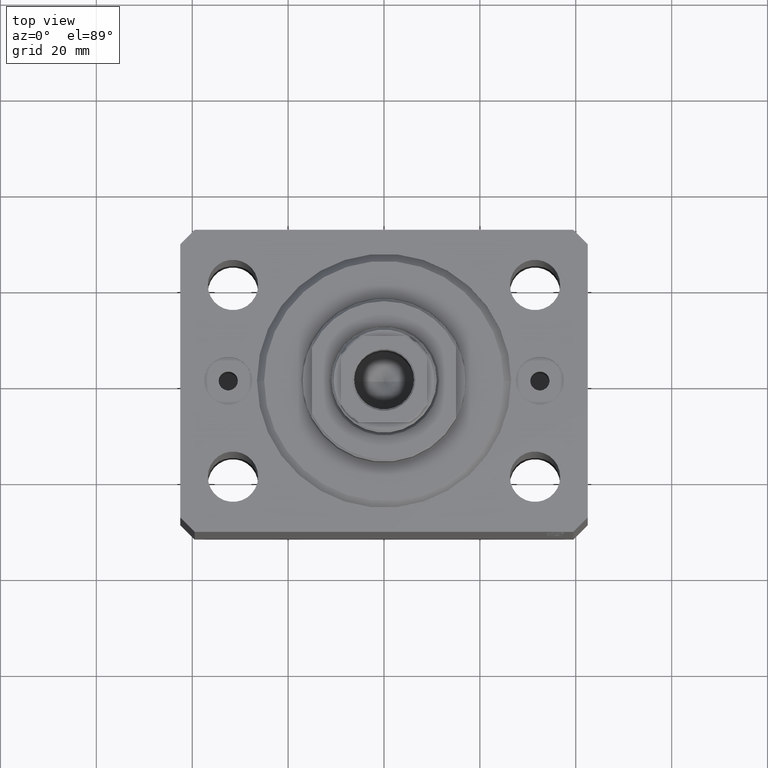
[diagram: clean part render]
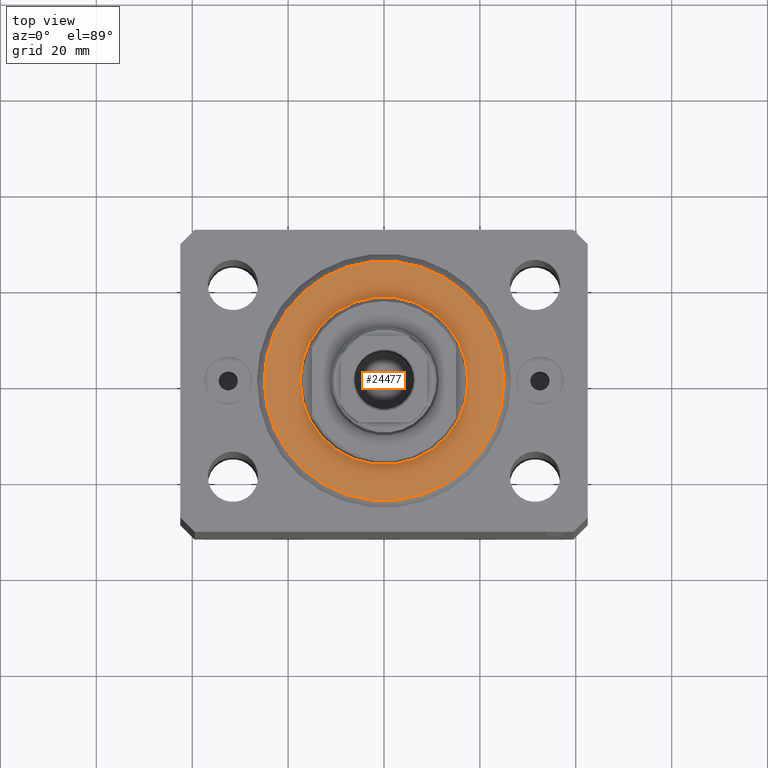
[diagram: same view with one face highlighted and labeled with its STEP entity id]
A machine part, top view. The second image highlights one B-rep face of the part: STEP entity #24477.
In plain terms, the highlighted planar face has unit normal (0, 0, -1).
Its self-contained STEP definition (entity closure, byte-faithful):
#227 = CIRCLE ( 'NONE', #34622, 24.99999999999995026 ) ;
#862 = ORIENTED_EDGE ( 'NONE', *, *, #3873, .T. ) ;
#2472 = CIRCLE ( 'NONE', #19665, 24.99999999999995026 ) ;
#3873 = EDGE_CURVE ( 'NONE', #36420, #24361, #14824, .T. ) ;
#4347 = CARTESIAN_POINT ( 'NONE',  ( 24.99999999999995026, 0.000000000000000000, 0.000000000000000000 ) ) ;
#7124 = CARTESIAN_POINT ( 'NONE',  ( -24.99999999999995026, 3.153465507804431248E-15, 0.000000000000000000 ) ) ;
#10063 = VERTEX_POINT ( 'NONE', #7124 ) ;
#10551 = EDGE_LOOP ( 'NONE', ( #39640, #33841 ) ) ;
#13218 = DIRECTION ( 'NONE',  ( 1.000000000000000000, 0.000000000000000000, -0.000000000000000000 ) ) ;
#13913 = DIRECTION ( 'NONE',  ( 1.000000000000000000, 0.000000000000000000, 0.000000000000000000 ) ) ;
#14144 = EDGE_CURVE ( 'NONE', #10063, #32699, #2472, .T. ) ;
#14824 = CIRCLE ( 'NONE', #39912, 17.50000000000000000 ) ;
#15882 = AXIS2_PLACEMENT_3D ( 'NONE', #43938, #33649, #13218 ) ;
#16568 = DIRECTION ( 'NONE',  ( 0.000000000000000000, 0.000000000000000000, 1.000000000000000000 ) ) ;
#16749 = EDGE_LOOP ( 'NONE', ( #862, #42085 ) ) ;
#19665 = AXIS2_PLACEMENT_3D ( 'NONE', #25511, #42317, #13913 ) ;
#23092 = CARTESIAN_POINT ( 'NONE',  ( 0.000000000000000000, 0.000000000000000000, 0.000000000000000000 ) ) ;
#23548 = FACE_BOUND ( 'NONE', #16749, .T. ) ;
#24361 = VERTEX_POINT ( 'NONE', #38602 ) ;
#24477 = ADVANCED_FACE ( 'NONE', ( #23548, #37225 ), #40578, .F. ) ;
#25511 = CARTESIAN_POINT ( 'NONE',  ( 0.000000000000000000, 0.000000000000000000, 0.000000000000000000 ) ) ;
#28362 = DIRECTION ( 'NONE',  ( -0.000000000000000000, -0.000000000000000000, -1.000000000000000000 ) ) ;
#31074 = CARTESIAN_POINT ( 'NONE',  ( 0.000000000000000000, 0.000000000000000000, 0.000000000000000000 ) ) ;
#31968 = DIRECTION ( 'NONE',  ( 0.000000000000000000, 0.000000000000000000, 1.000000000000000000 ) ) ;
#32584 = CIRCLE ( 'NONE', #43283, 17.50000000000000000 ) ;
#32699 = VERTEX_POINT ( 'NONE', #4347 ) ;
#32715 = EDGE_CURVE ( 'NONE', #32699, #10063, #227, .T. ) ;
#32767 = DIRECTION ( 'NONE',  ( 1.000000000000000000, 0.000000000000000000, 0.000000000000000000 ) ) ;
#33649 = DIRECTION ( 'NONE',  ( 0.000000000000000000, 0.000000000000000000, 1.000000000000000000 ) ) ;
#33841 = ORIENTED_EDGE ( 'NONE', *, *, #14144, .T. ) ;
#34622 = AXIS2_PLACEMENT_3D ( 'NONE', #31074, #28362, #37564 ) ;
#34733 = CARTESIAN_POINT ( 'NONE',  ( 17.50000000000000000, 0.000000000000000000, 2.168404344971008868E-16 ) ) ;
#34875 = DIRECTION ( 'NONE',  ( 1.000000000000000000, 0.000000000000000000, 0.000000000000000000 ) ) ;
#36351 = EDGE_CURVE ( 'NONE', #24361, #36420, #32584, .T. ) ;
#36420 = VERTEX_POINT ( 'NONE', #34733 ) ;
#37225 = FACE_OUTER_BOUND ( 'NONE', #10551, .T. ) ;
#37564 = DIRECTION ( 'NONE',  ( 1.000000000000000000, 0.000000000000000000, 0.000000000000000000 ) ) ;
#38232 = CARTESIAN_POINT ( 'NONE',  ( 0.000000000000000000, 0.000000000000000000, 0.000000000000000000 ) ) ;
#38602 = CARTESIAN_POINT ( 'NONE',  ( -17.50000000000000000, 2.143131898507868643E-15, 2.168404344971008868E-16 ) ) ;
#39640 = ORIENTED_EDGE ( 'NONE', *, *, #32715, .T. ) ;
#39912 = AXIS2_PLACEMENT_3D ( 'NONE', #38232, #31968, #34875 ) ;
#40578 = PLANE ( 'NONE',  #15882 ) ;
#42085 = ORIENTED_EDGE ( 'NONE', *, *, #36351, .T. ) ;
#42317 = DIRECTION ( 'NONE',  ( -0.000000000000000000, -0.000000000000000000, -1.000000000000000000 ) ) ;
#43283 = AXIS2_PLACEMENT_3D ( 'NONE', #23092, #16568, #32767 ) ;
#43938 = CARTESIAN_POINT ( 'NONE',  ( 0.000000000000000000, 0.000000000000000000, 0.000000000000000000 ) ) ;